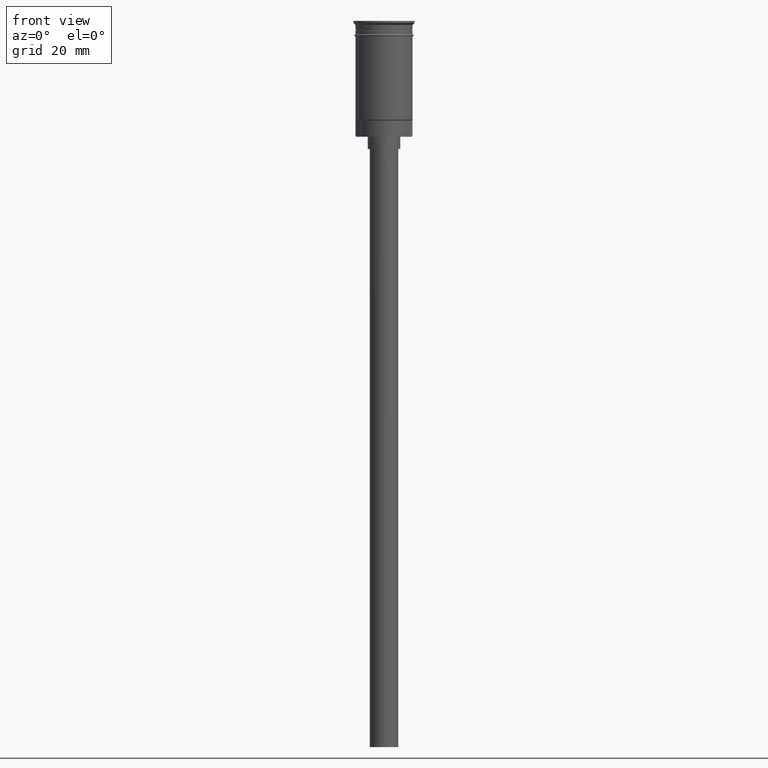
[diagram: clean part render]
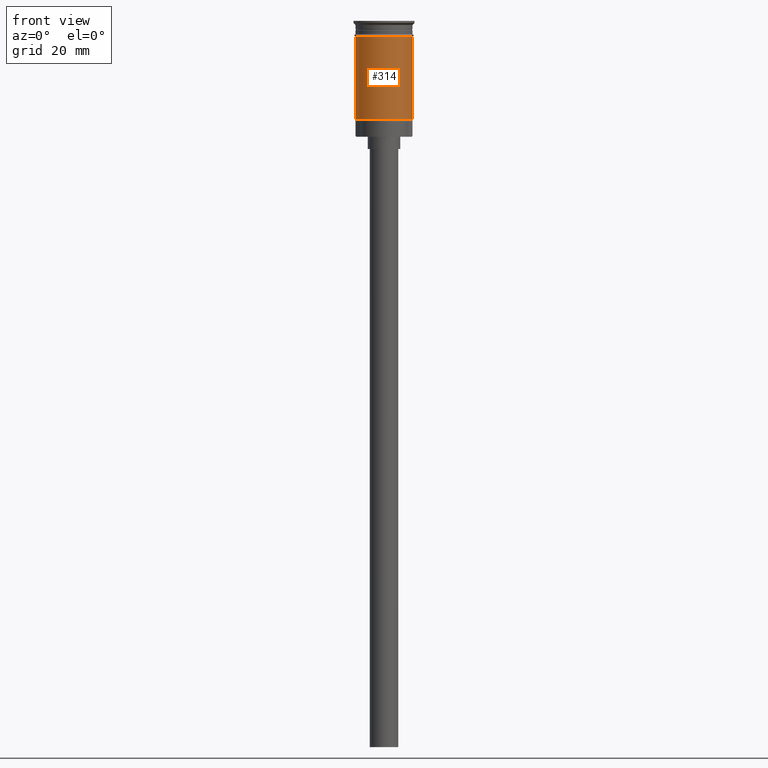
[diagram: same view with one face highlighted and labeled with its STEP entity id]
A machine part, front view. The second image highlights one B-rep face of the part: STEP entity #314.
In plain terms, the highlighted cylindrical surface (edge-blend (fillet) strip) has radius 7 mm, axis along (-0, -0, 1).
Its self-contained STEP definition (entity closure, byte-faithful):
#139 = CARTESIAN_POINT ( 'NONE',  ( 0.000000000000000000, 0.000000000000000000, 0.000000000000000000 ) ) ;
#182 = CARTESIAN_POINT ( 'NONE',  ( -6.999999999999993783, 0.000000000000000000, -24.29999999999998295 ) ) ;
#223 = ORIENTED_EDGE ( 'NONE', *, *, #1284, .F. ) ;
#243 = VERTEX_POINT ( 'NONE', #731 ) ;
#258 = DIRECTION ( 'NONE',  ( -0.000000000000000000, -0.000000000000000000, 1.000000000000000000 ) ) ;
#264 = DIRECTION ( 'NONE',  ( -0.000000000000000000, -0.000000000000000000, 1.000000000000000000 ) ) ;
#314 = ADVANCED_FACE ( 'NONE', ( #1555 ), #1242, .T. ) ;
#321 = AXIS2_PLACEMENT_3D ( 'NONE', #884, #258, #759 ) ;
#322 = VERTEX_POINT ( 'NONE', #1361 ) ;
#381 = CARTESIAN_POINT ( 'NONE',  ( -7.000000000000000000, 8.572527594031472204E-16, -3.799999999999998490 ) ) ;
#445 = VECTOR ( 'NONE', #1516, 1000.000000000000000 ) ;
#451 = ORIENTED_EDGE ( 'NONE', *, *, #766, .F. ) ;
#459 = VERTEX_POINT ( 'NONE', #182 ) ;
#470 = CIRCLE ( 'NONE', #1136, 6.999999999999996447 ) ;
#527 = CARTESIAN_POINT ( 'NONE',  ( 6.999999999999996447, 0.000000000000000000, 0.000000000000000000 ) ) ;
#615 = DIRECTION ( 'NONE',  ( -0.000000000000000000, -0.000000000000000000, 1.000000000000000000 ) ) ;
#688 = DIRECTION ( 'NONE',  ( -0.000000000000000000, -0.000000000000000000, 1.000000000000000000 ) ) ;
#731 = CARTESIAN_POINT ( 'NONE',  ( 6.999999999999996447, 8.572527594031468259E-16, -24.29999999999998295 ) ) ;
#759 = DIRECTION ( 'NONE',  ( 1.000000000000000000, 0.000000000000000000, 0.000000000000000000 ) ) ;
#766 = EDGE_CURVE ( 'NONE', #1599, #322, #1180, .T. ) ;
#883 = LINE ( 'NONE', #527, #989 ) ;
#884 = CARTESIAN_POINT ( 'NONE',  ( 0.000000000000000000, 0.000000000000000000, -3.799999999999998490 ) ) ;
#980 = ORIENTED_EDGE ( 'NONE', *, *, #1248, .T. ) ;
#989 = VECTOR ( 'NONE', #264, 1000.000000000000000 ) ;
#997 = CARTESIAN_POINT ( 'NONE',  ( -6.999999999999996447, 8.572527594031468259E-16, 0.000000000000000000 ) ) ;
#1000 = DIRECTION ( 'NONE',  ( 1.000000000000000000, 0.000000000000000000, 0.000000000000000000 ) ) ;
#1031 = LINE ( 'NONE', #997, #445 ) ;
#1035 = CARTESIAN_POINT ( 'NONE',  ( 0.000000000000000000, 0.000000000000000000, -24.29999999999998295 ) ) ;
#1058 = DIRECTION ( 'NONE',  ( -1.000000000000000000, 0.000000000000000000, 0.000000000000000000 ) ) ;
#1136 = AXIS2_PLACEMENT_3D ( 'NONE', #1035, #688, #1058 ) ;
#1140 = EDGE_CURVE ( 'NONE', #459, #243, #470, .T. ) ;
#1180 = CIRCLE ( 'NONE', #321, 6.999999999999999112 ) ;
#1242 = CYLINDRICAL_SURFACE ( 'NONE', #1496, 6.999999999999996447 ) ;
#1248 = EDGE_CURVE ( 'NONE', #243, #322, #883, .T. ) ;
#1284 = EDGE_CURVE ( 'NONE', #459, #1599, #1031, .T. ) ;
#1299 = EDGE_LOOP ( 'NONE', ( #223, #1589, #980, #451 ) ) ;
#1361 = CARTESIAN_POINT ( 'NONE',  ( 6.999999999999999112, 0.000000000000000000, -3.799999999999998490 ) ) ;
#1496 = AXIS2_PLACEMENT_3D ( 'NONE', #139, #615, #1000 ) ;
#1516 = DIRECTION ( 'NONE',  ( -0.000000000000000000, -0.000000000000000000, 1.000000000000000000 ) ) ;
#1555 = FACE_OUTER_BOUND ( 'NONE', #1299, .T. ) ;
#1589 = ORIENTED_EDGE ( 'NONE', *, *, #1140, .T. ) ;
#1599 = VERTEX_POINT ( 'NONE', #381 ) ;